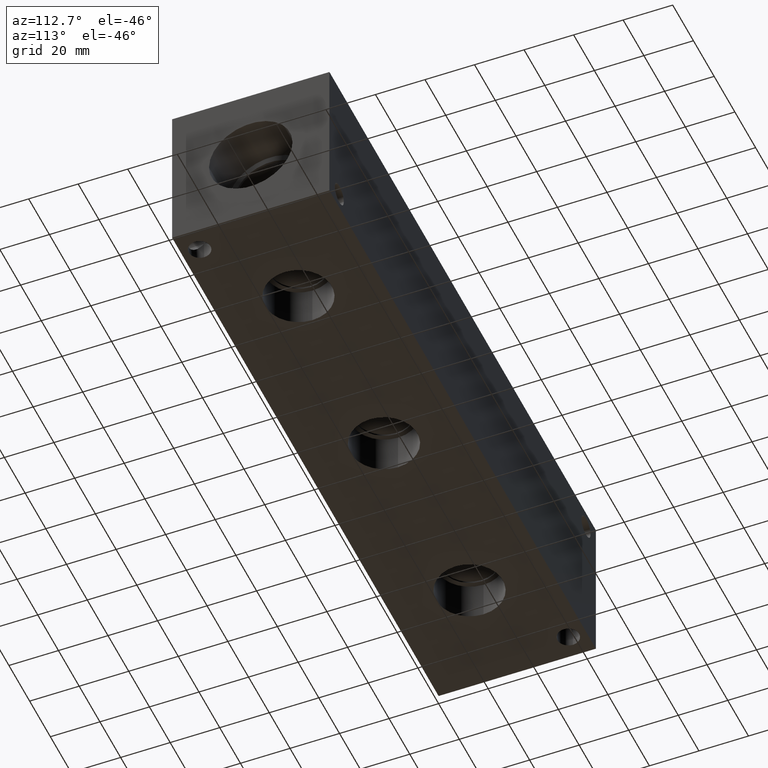
[diagram: clean part render]
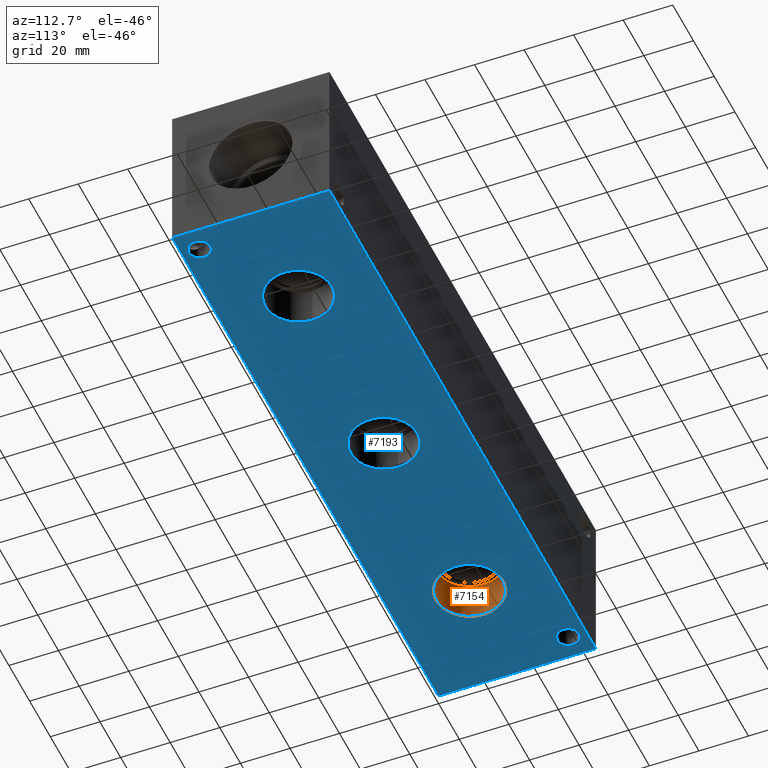
[diagram: same view with the hole feature highlighted: cylindrical wall and planar end face, labeled with their STEP entity ids]
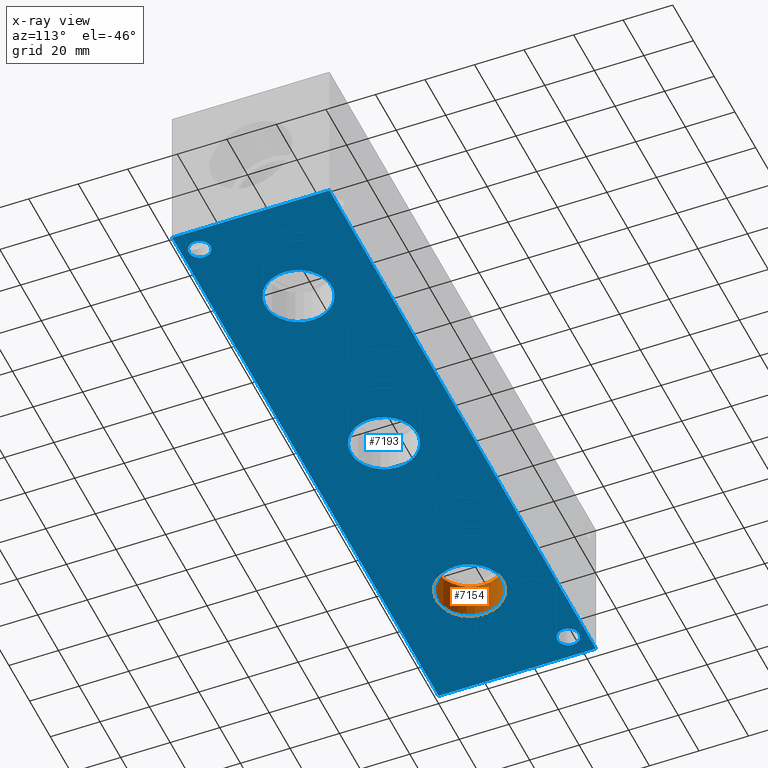
[diagram: x-ray of the same camera — body ghosted, the hole faces saturated]
A machine part, auxiliary view. The highlighted faces form one hole feature of diameter 26.924 mm: the cylindrical wall (entity #7154, orange) and its adjacent planar end face (entity #7193, blue) — they share a circular edge in the B-rep.
The next image is the same camera in x-ray (body ghosted, the hole faces saturated) — the bore reads through the body.
Wall:
#24=CYLINDRICAL_SURFACE('',#7460,13.462);
#73=CIRCLE('',#7457,13.462);
#74=CIRCLE('',#7458,13.462);
#76=CIRCLE('',#7461,13.462);
#77=CIRCLE('',#7462,13.462);
#732=FACE_OUTER_BOUND('',#1127,.T.);
#1127=EDGE_LOOP('',(#6230,#6231,#6232,#6233,#6234,#6235));
#1874=LINE('',#11982,#2600);
#2600=VECTOR('',#8756,13.462);
#3419=VERTEX_POINT('',#11971);
#3420=VERTEX_POINT('',#11972);
#3422=VERTEX_POINT('',#11978);
#3423=VERTEX_POINT('',#11979);
#4373=EDGE_CURVE('',#3419,#3420,#73,.T.);
#4374=EDGE_CURVE('',#3420,#3419,#74,.T.);
#4376=EDGE_CURVE('',#3422,#3423,#76,.T.);
#4377=EDGE_CURVE('',#3423,#3422,#77,.T.);
#4378=EDGE_CURVE('',#3423,#3420,#1874,.T.);
#6230=ORIENTED_EDGE('',*,*,#4376,.F.);
#6231=ORIENTED_EDGE('',*,*,#4377,.F.);
#6232=ORIENTED_EDGE('',*,*,#4378,.T.);
#6233=ORIENTED_EDGE('',*,*,#4373,.F.);
#6234=ORIENTED_EDGE('',*,*,#4374,.F.);
#6235=ORIENTED_EDGE('',*,*,#4378,.F.);
#7154=ADVANCED_FACE('',(#732),#24,.F.);
#7457=AXIS2_PLACEMENT_3D('',#11973,#8744,#8745);
#7458=AXIS2_PLACEMENT_3D('',#11974,#8746,#8747);
#7460=AXIS2_PLACEMENT_3D('',#11977,#8750,#8751);
#7461=AXIS2_PLACEMENT_3D('',#11980,#8752,#8753);
#7462=AXIS2_PLACEMENT_3D('',#11981,#8754,#8755);
#8744=DIRECTION('center_axis',(0.,0.,-1.));
#8745=DIRECTION('ref_axis',(1.,0.,0.));
#8746=DIRECTION('center_axis',(0.,0.,-1.));
#8747=DIRECTION('ref_axis',(1.,0.,0.));
#8750=DIRECTION('center_axis',(0.,0.,-1.));
#8751=DIRECTION('ref_axis',(1.,0.,0.));
#8752=DIRECTION('center_axis',(0.,0.,1.));
#8753=DIRECTION('ref_axis',(1.,0.,0.));
#8754=DIRECTION('center_axis',(0.,0.,1.));
#8755=DIRECTION('ref_axis',(1.,0.,0.));
#8756=DIRECTION('',(0.,0.,1.));
#11971=CARTESIAN_POINT('',(59.4868,31.75,15.8496));
#11972=CARTESIAN_POINT('',(32.5628,31.75,15.8496));
#11973=CARTESIAN_POINT('Origin',(46.0248,31.75,15.8496));
#11974=CARTESIAN_POINT('Origin',(46.0248,31.75,15.8496));
#11977=CARTESIAN_POINT('Origin',(46.0248,31.75,7.9248));
#11978=CARTESIAN_POINT('',(59.4868,31.75,0.));
#11979=CARTESIAN_POINT('',(32.5628,31.75,1.11022302462516E-15));
#11980=CARTESIAN_POINT('Origin',(46.0248,31.75,0.));
#11981=CARTESIAN_POINT('Origin',(46.0248,31.75,0.));
#11982=CARTESIAN_POINT('',(32.5628,31.75,7.9248));
End face:
#69=CIRCLE('',#7450,13.462);
#70=CIRCLE('',#7451,13.462);
#76=CIRCLE('',#7461,13.462);
#77=CIRCLE('',#7462,13.462);
#83=CIRCLE('',#7472,13.462);
#84=CIRCLE('',#7473,13.462);
#91=CIRCLE('',#7496,4.3688);
#92=CIRCLE('',#7498,4.3688);
#168=FACE_BOUND('',#1179,.T.);
#169=FACE_BOUND('',#1180,.T.);
#170=FACE_BOUND('',#1181,.T.);
#171=FACE_BOUND('',#1182,.T.);
#172=FACE_BOUND('',#1183,.T.);
#410=PLANE('',#7553);
#771=FACE_OUTER_BOUND('',#1178,.T.);
#1178=EDGE_LOOP('',(#6422,#6423,#6424,#6425));
#1179=EDGE_LOOP('',(#6426,#6427));
#1180=EDGE_LOOP('',(#6428,#6429));
#1181=EDGE_LOOP('',(#6430,#6431));
#1182=EDGE_LOOP('',(#6432));
#1183=EDGE_LOOP('',(#6433));
#1902=LINE('',#12152,#2628);
#1905=LINE('',#12157,#2631);
#1907=LINE('',#12161,#2633);
#1909=LINE('',#12164,#2635);
#2628=VECTOR('',#8956,10.);
#2631=VECTOR('',#8961,10.);
#2633=VECTOR('',#8965,10.);
#2635=VECTOR('',#8969,10.);
#3414=VERTEX_POINT('',#11956);
#3415=VERTEX_POINT('',#11957);
#3422=VERTEX_POINT('',#11978);
#3423=VERTEX_POINT('',#11979);
#3430=VERTEX_POINT('',#12000);
#3431=VERTEX_POINT('',#12001);
#3442=VERTEX_POINT('',#12044);
#3443=VERTEX_POINT('',#12048);
#3478=VERTEX_POINT('',#12150);
#3479=VERTEX_POINT('',#12151);
#3480=VERTEX_POINT('',#12156);
#3481=VERTEX_POINT('',#12160);
#4366=EDGE_CURVE('',#3414,#3415,#69,.T.);
#4367=EDGE_CURVE('',#3415,#3414,#70,.T.);
#4376=EDGE_CURVE('',#3422,#3423,#76,.T.);
#4377=EDGE_CURVE('',#3423,#3422,#77,.T.);
#4386=EDGE_CURVE('',#3430,#3431,#83,.T.);
#4387=EDGE_CURVE('',#3431,#3430,#84,.T.);
#4411=EDGE_CURVE('',#3442,#3442,#91,.T.);
#4413=EDGE_CURVE('',#3443,#3443,#92,.T.);
#4458=EDGE_CURVE('',#3478,#3479,#1902,.T.);
#4461=EDGE_CURVE('',#3480,#3478,#1905,.T.);
#4463=EDGE_CURVE('',#3481,#3480,#1907,.T.);
#4465=EDGE_CURVE('',#3479,#3481,#1909,.T.);
#6422=ORIENTED_EDGE('',*,*,#4465,.F.);
#6423=ORIENTED_EDGE('',*,*,#4458,.F.);
#6424=ORIENTED_EDGE('',*,*,#4461,.F.);
#6425=ORIENTED_EDGE('',*,*,#4463,.F.);
#6426=ORIENTED_EDGE('',*,*,#4366,.T.);
#6427=ORIENTED_EDGE('',*,*,#4367,.T.);
#6428=ORIENTED_EDGE('',*,*,#4376,.T.);
#6429=ORIENTED_EDGE('',*,*,#4377,.T.);
#6430=ORIENTED_EDGE('',*,*,#4386,.T.);
#6431=ORIENTED_EDGE('',*,*,#4387,.T.);
#6432=ORIENTED_EDGE('',*,*,#4411,.T.);
#6433=ORIENTED_EDGE('',*,*,#4413,.T.);
#7193=ADVANCED_FACE('',(#771,#168,#169,#170,#171,#172),#410,.F.);
#7450=AXIS2_PLACEMENT_3D('',#11958,#8727,#8728);
#7451=AXIS2_PLACEMENT_3D('',#11959,#8729,#8730);
#7461=AXIS2_PLACEMENT_3D('',#11980,#8752,#8753);
#7462=AXIS2_PLACEMENT_3D('',#11981,#8754,#8755);
#7472=AXIS2_PLACEMENT_3D('',#12002,#8777,#8778);
#7473=AXIS2_PLACEMENT_3D('',#12003,#8779,#8780);
#7496=AXIS2_PLACEMENT_3D('',#12046,#8834,#8835);
#7498=AXIS2_PLACEMENT_3D('',#12050,#8839,#8840);
#7553=AXIS2_PLACEMENT_3D('',#12166,#8972,#8973);
#8727=DIRECTION('center_axis',(0.,0.,1.));
#8728=DIRECTION('ref_axis',(1.,0.,0.));
#8729=DIRECTION('center_axis',(0.,0.,1.));
#8730=DIRECTION('ref_axis',(1.,0.,0.));
#8752=DIRECTION('center_axis',(0.,0.,1.));
#8753=DIRECTION('ref_axis',(1.,0.,0.));
#8754=DIRECTION('center_axis',(0.,0.,1.));
#8755=DIRECTION('ref_axis',(1.,0.,0.));
#8777=DIRECTION('center_axis',(0.,0.,1.));
#8778=DIRECTION('ref_axis',(1.,0.,0.));
#8779=DIRECTION('center_axis',(0.,0.,1.));
#8780=DIRECTION('ref_axis',(1.,0.,0.));
#8834=DIRECTION('center_axis',(0.,0.,1.));
#8835=DIRECTION('ref_axis',(1.,0.,0.));
#8839=DIRECTION('center_axis',(0.,0.,1.));
#8840=DIRECTION('ref_axis',(1.,0.,0.));
#8956=DIRECTION('',(0.,-1.,0.));
#8961=DIRECTION('',(-1.,0.,0.));
#8965=DIRECTION('',(0.,1.,0.));
#8969=DIRECTION('',(1.,0.,0.));
#8972=DIRECTION('center_axis',(0.,0.,1.));
#8973=DIRECTION('ref_axis',(1.,0.,0.));
#11956=CARTESIAN_POINT('',(142.0368,31.75,0.));
#11957=CARTESIAN_POINT('',(115.1128,31.75,1.11022302462516E-15));
#11958=CARTESIAN_POINT('Origin',(128.5748,31.75,0.));
#11959=CARTESIAN_POINT('Origin',(128.5748,31.75,0.));
#11978=CARTESIAN_POINT('',(59.4868,31.75,0.));
#11979=CARTESIAN_POINT('',(32.5628,31.75,1.11022302462516E-15));
#11980=CARTESIAN_POINT('Origin',(46.0248,31.75,0.));
#11981=CARTESIAN_POINT('Origin',(46.0248,31.75,0.));
#12000=CARTESIAN_POINT('',(224.5868,31.75,0.));
#12001=CARTESIAN_POINT('',(197.6628,31.75,1.11022302462516E-15));
#12002=CARTESIAN_POINT('Origin',(211.1248,31.75,0.));
#12003=CARTESIAN_POINT('Origin',(211.1248,31.75,0.));
#12044=CARTESIAN_POINT('',(243.2812,7.1374,0.));
#12046=CARTESIAN_POINT('Origin',(247.65,7.1374,0.));
#12048=CARTESIAN_POINT('',(5.1562,56.3626,0.));
#12050=CARTESIAN_POINT('Origin',(9.525,56.3626,0.));
#12150=CARTESIAN_POINT('',(0.,63.5,0.));
#12151=CARTESIAN_POINT('',(0.,0.,0.));
#12152=CARTESIAN_POINT('',(0.,63.5,0.));
#12156=CARTESIAN_POINT('',(257.175,63.5,0.));
#12157=CARTESIAN_POINT('',(257.175,63.5,0.));
#12160=CARTESIAN_POINT('',(257.175,0.,0.));
#12161=CARTESIAN_POINT('',(257.175,0.,0.));
#12164=CARTESIAN_POINT('',(0.,0.,0.));
#12166=CARTESIAN_POINT('Origin',(128.5875,31.75,0.));